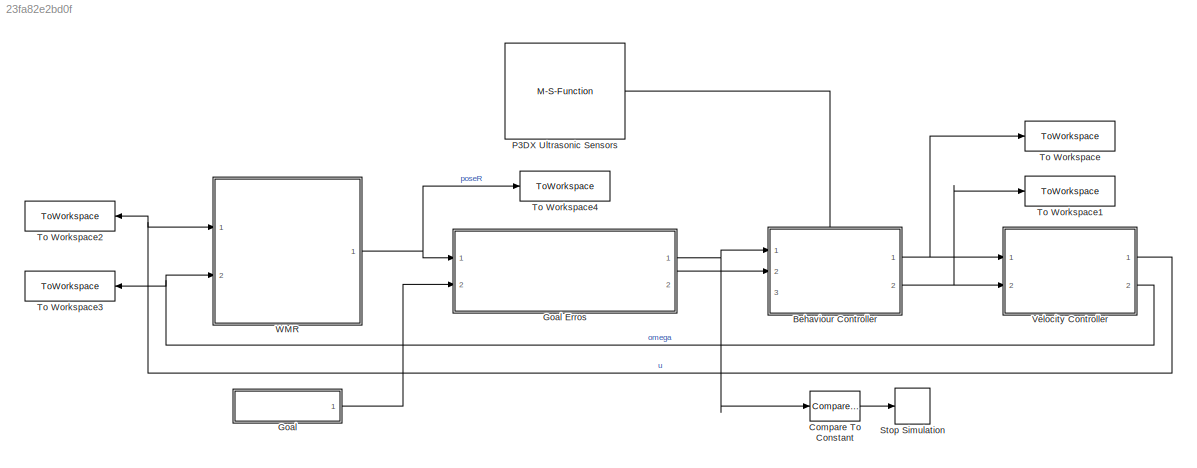
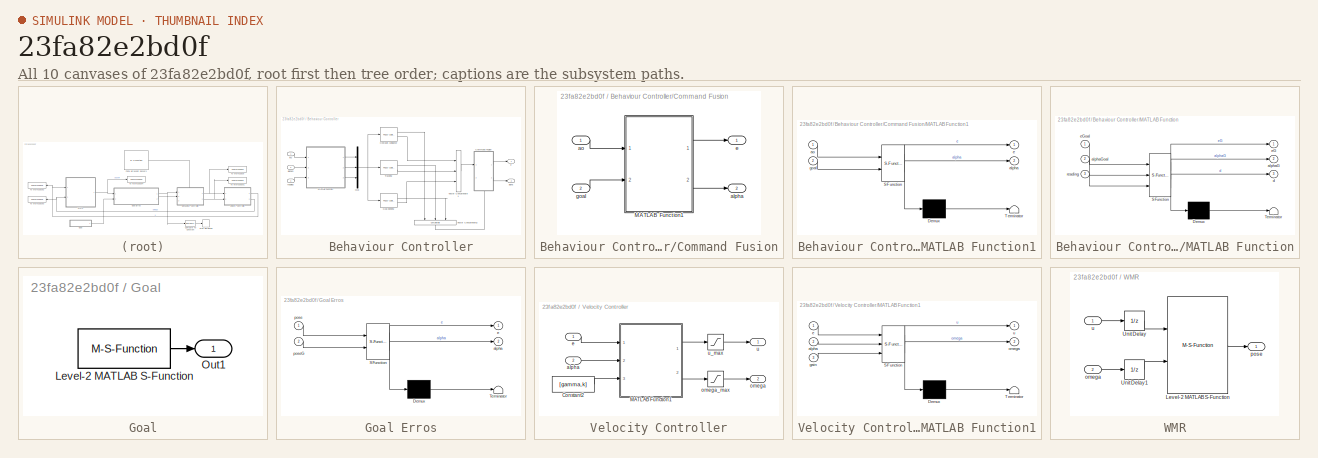
[diagram: thumbnail index - all 10 canvases of the model, root first then tree order]
MODEL slx_23fa82e2bd0f
KIND model
CONFIG AbsTol = auto
CONFIG EnableMultiTasking = off
CONFIG FixedStep = 5e-3
CONFIG MaxStep = auto
CONFIG MinStep = auto
CONFIG RelTol = 1e-3
CONFIG SampleTimeConstraint = Unconstrained
CONFIG Solver = FixedStepDiscrete
CONFIG SolverName = FixedStepDiscrete
CONFIG StartTime = 0.0
CONFIG StopTime = Inf
BLOCK [SubSystem] Behaviour Controller
  PortSchema = {"entries":[{"content":{"sides":[{"content":{"connectorIds":["In1","In2"]},"type":"ConnectorPlacement.EquallySpacedRectSide","uuid":"06a7f3f5-19ad-4266-b822-3ab888d38f4d"},{"content":{"connectorIds":["Out1","Out2"],"side":"RIGHT"},"type":"ConnectorPlacement.EquallySpacedRectSide","uuid":"a9a64b0c-d306-4cfa-a00f-170269f42e3e"},{"content":{"connectorIds":["In3"],"side":"TOP"},"type":"ConnectorPlacem...<+258ch>
  Ports = [3, 2]
  RequestExecContextInheritance = off
BLOCK [SubSystem] Behaviour Controller/Command Fusion
  NameLocation = top
  PortSchema = {"entries":[{"content":{"sides":[{"content":{"connectorIds":["In1"]},"type":"ConnectorPlacement.EquallySpacedRectSide","uuid":"73fd97c8-3045-4cbb-bad3-62703d9c5625"},{"content":{"connectorIds":["Out1","Out2"],"side":"RIGHT"},"type":"ConnectorPlacement.EquallySpacedRectSide","uuid":"597553a6-e8ee-4dcc-95be-8e7ec85d134a"},{"content":{"connectorIds":[],"side":"TOP"},"type":"ConnectorPlacement.Equally...<+396ch>
  Ports = [2, 2]
  RequestExecContextInheritance = off
BLOCK [SubSystem] Behaviour Controller/Command Fusion/MATLAB Function1
  ErrorFcn = Stateflow.Translate.translate
  PermitHierarchicalResolution = ExplicitOnly
  Ports = [2, 2]
  RequestExecContextInheritance = off
  SFBlockType = MATLAB Function
  TreatAsAtomicUnit = on
BLOCK [Demux] Behaviour Controller/Command Fusion/MATLAB Function1/ Demux 
  Outputs = 1
  Ports = [1, 1]
BLOCK [S-Function] Behaviour Controller/Command Fusion/MATLAB Function1/ SFunction 
  EnableBusSupport = on
  FunctionName = sf_sfun
  PortCounts = [2 3]
  Ports = [2, 3]
  SFcnIsStateOwnerBlock = off
  SFunctionDeploymentMode = off
  Tag = Stateflow S-Function 4
BLOCK [Terminator] Behaviour Controller/Command Fusion/MATLAB Function1/ Terminator 
BLOCK [Outport] Behaviour Controller/Command Fusion/MATLAB Function1/alpha
  Port = 2
BLOCK [Inport] Behaviour Controller/Command Fusion/MATLAB Function1/ao
BLOCK [Outport] Behaviour Controller/Command Fusion/MATLAB Function1/e
BLOCK [Inport] Behaviour Controller/Command Fusion/MATLAB Function1/goal
  Port = 2
BLOCK [Outport] Behaviour Controller/Command Fusion/alpha
  Port = 2
BLOCK [Inport] Behaviour Controller/Command Fusion/ao
BLOCK [Outport] Behaviour Controller/Command Fusion/e
BLOCK [Inport] Behaviour Controller/Command Fusion/goal
  Port = 2
BLOCK [Reference] Behaviour Controller/Goal Seeking  REF=fuzblock/Fuzzy Logic   (lib defined in mdl_858b3b3e7478)
Controller
  Ports = [1, 2]
  SourceBlock = fuzblock/Fuzzy Logic \nController
  SourceProductBaseCode = FL
  SourceType = Fuzzy Inference System
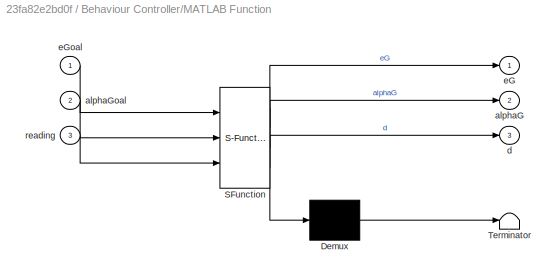
BLOCK [SubSystem] Behaviour Controller/MATLAB Function
  ErrorFcn = Stateflow.Translate.translate
  PermitHierarchicalResolution = ExplicitOnly
  Ports = [3, 3]
  RequestExecContextInheritance = off
  SFBlockType = MATLAB Function
  TreatAsAtomicUnit = on
BLOCK [Demux] Behaviour Controller/MATLAB Function/ Demux 
  Outputs = 1
  Ports = [1, 1]
BLOCK [S-Function] Behaviour Controller/MATLAB Function/ SFunction 
  EnableBusSupport = on
  FunctionName = sf_sfun
  PortCounts = [3 4]
  Ports = [3, 4]
  SFcnIsStateOwnerBlock = off
  SFunctionDeploymentMode = off
  Tag = Stateflow S-Function 1
BLOCK [Terminator] Behaviour Controller/MATLAB Function/ Terminator 
BLOCK [Outport] Behaviour Controller/MATLAB Function/alphaG
  Port = 2
BLOCK [Inport] Behaviour Controller/MATLAB Function/alphaGoal
  Port = 2
BLOCK [Outport] Behaviour Controller/MATLAB Function/d
  Port = 3
BLOCK [Outport] Behaviour Controller/MATLAB Function/eG
BLOCK [Inport] Behaviour Controller/MATLAB Function/eGoal
BLOCK [Inport] Behaviour Controller/MATLAB Function/reading
  Port = 3
BLOCK [Mux] Behaviour Controller/Mux
  DisplayOption = bar
  Inputs = 3
  Ports = [3, 1]
BLOCK [Reference] Behaviour Controller/Obstacle Avoidance  REF=fuzblock/Fuzzy Logic   (lib defined in mdl_858b3b3e7478)
Controller
  Ports = [1, 2]
  SourceBlock = fuzblock/Fuzzy Logic \nController
  SourceProductBaseCode = FL
  SourceType = Fuzzy Inference System
BLOCK [Reference] Behaviour Controller/Tracking  REF=fuzblock/Fuzzy Logic   (lib defined in mdl_858b3b3e7478)
Controller
  Ports = [1, 2]
  SourceBlock = fuzblock/Fuzzy Logic \nController
  SourceProductBaseCode = FL
  SourceType = Fuzzy Inference System
BLOCK [Concatenate] Behaviour Controller/Vector Concatenate1
  ConcatenateDimension = 2
  Mode = Multidimensional array
  NumInputs = 3
  Ports = [3, 1]
BLOCK [Concatenate] Behaviour Controller/Vector Concatenate2
  ConcatenateDimension = 2
  Mode = Multidimensional array
  NameLocation = left
  NumInputs = 3
  Ports = [3, 1]
BLOCK [Outport] Behaviour Controller/alpha
  Port = 2
BLOCK [Inport] Behaviour Controller/alphaG
  Port = 2
BLOCK [Outport] Behaviour Controller/e
BLOCK [Inport] Behaviour Controller/eG
BLOCK [Inport] Behaviour Controller/reading
  Port = 3
BLOCK [Reference] Compare To Constant  REF=simulink/Logic and Bit
Operations/Compare
To Constant
  Ports = [1, 1]
  SourceBlock = simulink/Logic and Bit\nOperations/Compare\nTo Constant
  SourceProductBaseCode = SL
  SourceType = Compare To Constant
BLOCK [SubSystem] Goal
  Ports = [0, 1]
  RequestExecContextInheritance = off
  VariantControl = GOAL_COPPELIA
BLOCK [SubSystem] Goal Erros
  ErrorFcn = Stateflow.Translate.translate
  PermitHierarchicalResolution = ExplicitOnly
  Ports = [2, 2]
  RequestExecContextInheritance = off
  SFBlockType = MATLAB Function
  TreatAsAtomicUnit = on
BLOCK [Demux] Goal Erros/ Demux 
  Outputs = 1
  Ports = [1, 1]
BLOCK [S-Function] Goal Erros/ SFunction 
  EnableBusSupport = on
  FunctionName = sf_sfun
  PortCounts = [2 3]
  Ports = [2, 3]
  SFcnIsStateOwnerBlock = off
  SFunctionDeploymentMode = off
  Tag = Stateflow S-Function 2
BLOCK [Terminator] Goal Erros/ Terminator 
BLOCK [Outport] Goal Erros/alpha
  Port = 2
BLOCK [Outport] Goal Erros/e
BLOCK [Inport] Goal Erros/pose
BLOCK [Inport] Goal Erros/poseG
  Port = 2
BLOCK [M-S-Function] Goal/Level-2 MATLAB S-Function
  FunctionName = coppeliaGoal
  Ports = [0, 1]
BLOCK [Outport] Goal/Out1
BLOCK [M-S-Function] P3DX Ultrasonic Sensors
  FunctionName = p3dxUltrasonic
  Ports = [0, 1]
BLOCK [Stop] Stop Simulation
BLOCK [ToWorkspace] To Workspace
  FixptAsFi = on
  MaxDataPoints = inf
  Ports = [1]
  SampleTime = -1
  SaveFormat = Timeseries
  VariableName = e
BLOCK [ToWorkspace] To Workspace1
  FixptAsFi = on
  MaxDataPoints = inf
  Ports = [1]
  SampleTime = -1
  SaveFormat = Timeseries
  VariableName = alpha
BLOCK [ToWorkspace] To Workspace2
  FixptAsFi = on
  MaxDataPoints = inf
  Ports = [1]
  SampleTime = -1
  SaveFormat = Timeseries
  VariableName = u
BLOCK [ToWorkspace] To Workspace3
  FixptAsFi = on
  MaxDataPoints = inf
  Ports = [1]
  SampleTime = -1
  SaveFormat = Timeseries
  VariableName = omega
BLOCK [ToWorkspace] To Workspace4
  FixptAsFi = on
  MaxDataPoints = inf
  Ports = [1]
  SampleTime = -1
  SaveFormat = Timeseries
  VariableName = poseR
BLOCK [SubSystem] Velocity Controller
  Ports = [2, 2]
  RequestExecContextInheritance = off
BLOCK [Constant] Velocity Controller/Constant2
  Value = [gamma,k]
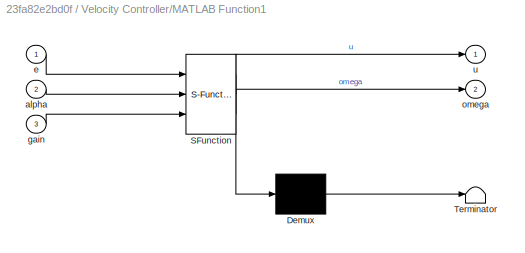
BLOCK [SubSystem] Velocity Controller/MATLAB Function1
  ErrorFcn = Stateflow.Translate.translate
  PermitHierarchicalResolution = ExplicitOnly
  Ports = [3, 2]
  RequestExecContextInheritance = off
  SFBlockType = MATLAB Function
  TreatAsAtomicUnit = on
BLOCK [Demux] Velocity Controller/MATLAB Function1/ Demux 
  Outputs = 1
  Ports = [1, 1]
BLOCK [S-Function] Velocity Controller/MATLAB Function1/ SFunction 
  EnableBusSupport = on
  FunctionName = sf_sfun
  PortCounts = [3 3]
  Ports = [3, 3]
  SFcnIsStateOwnerBlock = off
  SFunctionDeploymentMode = off
  Tag = Stateflow S-Function 3
BLOCK [Terminator] Velocity Controller/MATLAB Function1/ Terminator 
BLOCK [Inport] Velocity Controller/MATLAB Function1/alpha
  Port = 2
BLOCK [Inport] Velocity Controller/MATLAB Function1/e
BLOCK [Inport] Velocity Controller/MATLAB Function1/gain
  Port = 3
BLOCK [Outport] Velocity Controller/MATLAB Function1/omega
  Port = 2
BLOCK [Outport] Velocity Controller/MATLAB Function1/u
BLOCK [Inport] Velocity Controller/alpha
  Port = 2
BLOCK [Inport] Velocity Controller/e
BLOCK [Outport] Velocity Controller/omega
  Port = 2
BLOCK [Saturate] Velocity Controller/omega_max
  LowerLimit = -omega_max
  UpperLimit = omega_max
BLOCK [Outport] Velocity Controller/u
BLOCK [Saturate] Velocity Controller/u_max
  LowerLimit = -u_max
  UpperLimit = u_max
BLOCK [SubSystem] WMR
  Ports = [2, 1]
  RequestExecContextInheritance = off
  VariantControl = UNICYCLE_COPPELIA
BLOCK [M-S-Function] WMR/Level-2 MATLAB S-Function
  FunctionName = coppeliaScene
  Ports = [2, 1]
BLOCK [UnitDelay] WMR/Unit Delay
  HasFrameUpgradeWarning = on
  SampleTime = -1
BLOCK [UnitDelay] WMR/Unit Delay1
  HasFrameUpgradeWarning = on
  SampleTime = -1
BLOCK [Inport] WMR/omega
  Port = 2
BLOCK [Outport] WMR/pose
BLOCK [Inport] WMR/u
LINE Behaviour Controller/Command Fusion/MATLAB Function1:1 -> Behaviour Controller/Command Fusion/e:1
LINE Behaviour Controller/Command Fusion/MATLAB Function1:2 -> Behaviour Controller/Command Fusion/alpha:1
LINE Behaviour Controller/Command Fusion/ao:1 -> Behaviour Controller/Command Fusion/MATLAB Function1:1
LINE Behaviour Controller/Command Fusion/goal:1 -> Behaviour Controller/Command Fusion/MATLAB Function1:2
LINE Behaviour Controller/Command Fusion:1 -> Behaviour Controller/e:1
LINE Behaviour Controller/Command Fusion:2 -> Behaviour Controller/alpha:1
LINE Behaviour Controller/Goal Seeking:1 -> Behaviour Controller/Vector Concatenate2:3
LINE Behaviour Controller/Goal Seeking:2 -> Behaviour Controller/Vector Concatenate1:3
LINE Behaviour Controller/MATLAB Function:1 -> Behaviour Controller/Mux:1
LINE Behaviour Controller/MATLAB Function:2 -> Behaviour Controller/Mux:2
LINE Behaviour Controller/MATLAB Function:3 -> Behaviour Controller/Mux:3
NET Behaviour Controller/Mux:1 -> Behaviour Controller/Goal Seeking:1, Behaviour Controller/Obstacle Avoidance:1, Behaviour Controller/Tracking:1
LINE Behaviour Controller/Obstacle Avoidance:1 -> Behaviour Controller/Vector Concatenate2:1
LINE Behaviour Controller/Obstacle Avoidance:2 -> Behaviour Controller/Vector Concatenate1:1
LINE Behaviour Controller/Tracking:1 -> Behaviour Controller/Vector Concatenate2:2
LINE Behaviour Controller/Tracking:2 -> Behaviour Controller/Vector Concatenate1:2
LINE Behaviour Controller/Vector Concatenate1:1 -> Behaviour Controller/Command Fusion:1
LINE Behaviour Controller/Vector Concatenate2:1 -> Behaviour Controller/Command Fusion:2
LINE Behaviour Controller/alphaG:1 -> Behaviour Controller/MATLAB Function:2
LINE Behaviour Controller/eG:1 -> Behaviour Controller/MATLAB Function:1
LINE Behaviour Controller/reading:1 -> Behaviour Controller/MATLAB Function:3
NET Behaviour Controller:1 -> To Workspace:1, Velocity Controller:1
NET Behaviour Controller:2 -> To Workspace1:1, Velocity Controller:2
LINE Compare To Constant:1 -> Stop Simulation:1
NET Goal Erros:1 -> Behaviour Controller:1, Compare To Constant:1
LINE Goal Erros:2 -> Behaviour Controller:2
LINE Goal/Level-2 MATLAB S-Function:1 -> Goal/Out1:1
LINE Goal:1 -> Goal Erros:2
LINE P3DX Ultrasonic Sensors:1 -> Behaviour Controller:3
LINE Velocity Controller/Constant2:1 -> Velocity Controller/MATLAB Function1:3
LINE Velocity Controller/MATLAB Function1:1 -> Velocity Controller/u_max:1
LINE Velocity Controller/MATLAB Function1:2 -> Velocity Controller/omega_max:1
LINE Velocity Controller/alpha:1 -> Velocity Controller/MATLAB Function1:2
LINE Velocity Controller/e:1 -> Velocity Controller/MATLAB Function1:1
LINE Velocity Controller/omega_max:1 -> Velocity Controller/omega:1
LINE Velocity Controller/u_max:1 -> Velocity Controller/u:1
NET Velocity Controller:1 -> To Workspace2:1, WMR:1
NET Velocity Controller:2 -> To Workspace3:1, WMR:2
LINE WMR/Level-2 MATLAB S-Function:1 -> WMR/pose:1
LINE WMR/Unit Delay1:1 -> WMR/Level-2 MATLAB S-Function:2
LINE WMR/Unit Delay:1 -> WMR/Level-2 MATLAB S-Function:1
LINE WMR/omega:1 -> WMR/Unit Delay1:1
LINE WMR/u:1 -> WMR/Unit Delay:1
NET WMR:1 -> Goal Erros:1, To Workspace4:1
note: NET lines group one-source signal fan-out (src -> all destinations, sorted); 1:1 wires keep LINE
CHART Behaviour Controller/MATLAB Function states=1 transitions=1
  STATE_LABEL 'eML_blk_kernel()'
  STATE_LABEL 'SCRIPT:\nfunction [eG,alphaG,d] = inputGen(eGoal,alphaGoal,reading)\n\nidx = [[2 3 4 5 6 7];[6 7 8 9 7 6];[3 2 1 16 2 3]];\n\nd = zeros(1,3); r = zeros(1,6);\nfor i = 1:3\n    r = reading(idx(i,:))/2;\n    d(i) = min([ ...\n        power([r(1),r(6)],0.25), ...\n        power([r(2),r(5)],0.4), ...\n        r(3),r(4)]);\nend\neG = eGoal;\nalphaG = alphaGoal;\n'
CHART Goal Erros states=1 transitions=1
  STATE_LABEL 'eML_blk_kernel()'
  STATE_LABEL 'SCRIPT:\nfunction [e,alpha] = errors(pose,poseG)\n\ndeltaX = poseG(1)-pose(1); deltaY = poseG(2)-pose(2);\nphi = pose(3);\n\ne = sqrt(deltaX^2 + deltaY^2);\nalpha = atan2(deltaY,deltaX) - phi;\n\nif alpha < -pi\n    alpha = alpha + 2*pi;\nelseif alpha >= pi\n    alpha = alpha - 2*pi;\nend\n'
CHART Velocity Controller/MATLAB Function1 states=1 transitions=1
  STATE_LABEL 'eML_blk_kernel()'
  STATE_LABEL 'SCRIPT:\nfunction [u,omega] = control(e,alpha,gain)\n\ngamma = gain(1); k = gain(2);\n\nu = gamma*e*cos(alpha);\nomega = k*alpha + gamma*cos(alpha)*sin(alpha);\n'
CHART Behaviour Controller/Command Fusion/MATLAB Function1 states=1 transitions=1
  STATE_LABEL 'eML_blk_kernel()'
  STATE_LABEL "SCRIPT:\nfunction [e,alpha] = commandFusion(ao,goal)\n\ncoder.extrinsic('plotV');\ncoder.extrinsic('paretto');\n\nw = paretto(max(ao(:,1:2:(end-1)),ao(:,2:2:end)))\n\ne = 0; alpha = 0;\ne       = goal(1,:)*w'/sum(w);\nalpha   = goal(2,:)*w'/sum(w);\n\nplotV([[e;alpha],goal]);"
CHART  states=0 transitions=0
CHART  states=0 transitions=0
CHART  states=0 transitions=0
CHART  states=0 transitions=0
